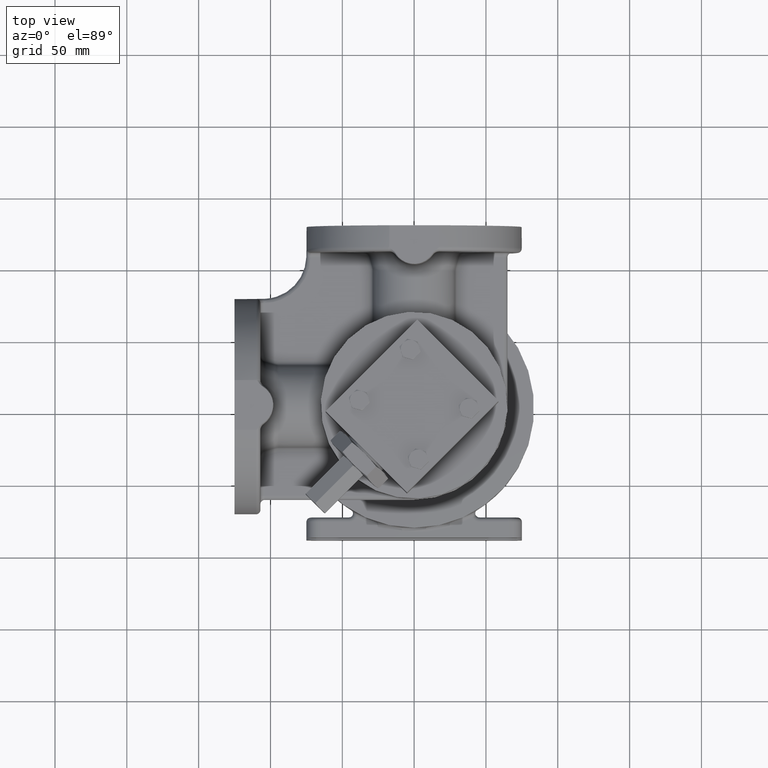
[diagram: clean part render]
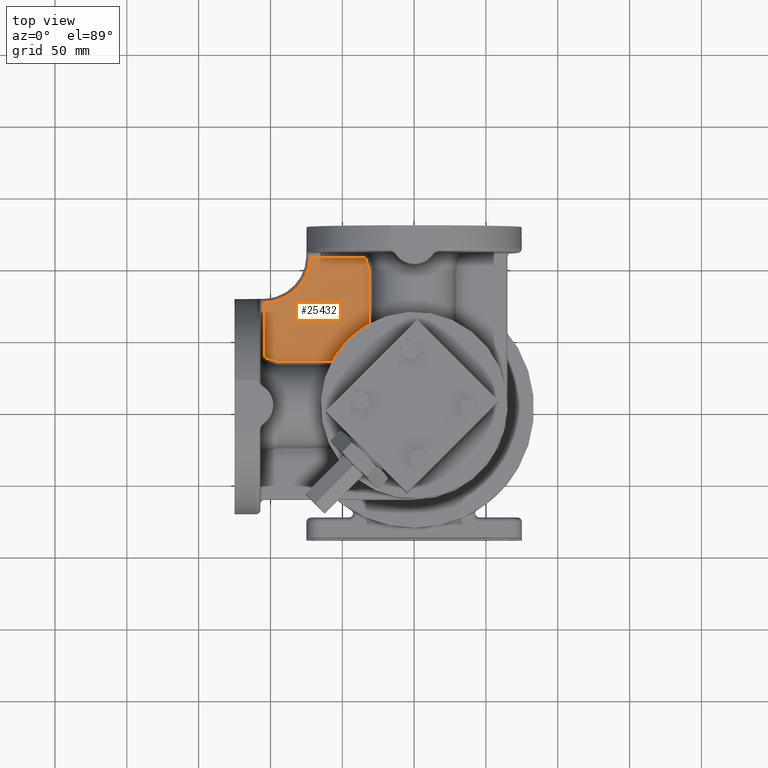
[diagram: same view with one face highlighted and labeled with its STEP entity id]
A machine part, top view. The second image highlights one B-rep face of the part: STEP entity #25432.
In plain terms, the highlighted planar face has unit normal (0, 0, 1).
Its self-contained STEP definition (entity closure, byte-faithful):
#3780=DIRECTION('',(-1.E0,0.E0,0.E0));
#3781=VECTOR('',#3780,3.646591405907E1);
#3782=CARTESIAN_POINT('',(-3.554924084365E1,1.04E2,8.8E1));
#3783=LINE('',#3782,#3781);
#3784=CARTESIAN_POINT('',(-3.358848383382E1,1.025176380902E2,8.8E1));
#3785=CARTESIAN_POINT('',(-3.359880674233E1,1.025555632289E2,8.8E1));
#3786=CARTESIAN_POINT('',(-3.362168765142E1,1.026307127251E2,8.8E1));
#3787=CARTESIAN_POINT('',(-3.366279563375E1,1.027415481895E2,8.8E1));
#3788=CARTESIAN_POINT('',(-3.371048708327E1,1.028498430562E2,8.8E1));
#3789=CARTESIAN_POINT('',(-3.376464429374E1,1.029553051851E2,8.8E1));
#3790=CARTESIAN_POINT('',(-3.382508992555E1,1.030575346291E2,8.8E1));
#3791=CARTESIAN_POINT('',(-3.389163890493E1,1.031561783818E2,8.8E1));
#3792=CARTESIAN_POINT('',(-3.396407886905E1,1.032508791446E2,8.8E1));
#3793=CARTESIAN_POINT('',(-3.404217651746E1,1.033412929686E2,8.8E1));
#3794=CARTESIAN_POINT('',(-3.412567543907E1,1.034270858297E2,8.8E1));
#3795=CARTESIAN_POINT('',(-3.421429716557E1,1.035079370077E2,8.8E1));
#3796=CARTESIAN_POINT('',(-3.430774143446E1,1.035835403806E2,8.8E1));
#3797=CARTESIAN_POINT('',(-3.440568684714E1,1.036536063155E2,8.8E1));
#3798=CARTESIAN_POINT('',(-3.450779177099E1,1.037178634824E2,8.8E1));
#3799=CARTESIAN_POINT('',(-3.461369541848E1,1.037760606378E2,8.8E1));
#3800=CARTESIAN_POINT('',(-3.472301930221E1,1.038279683638E2,8.8E1));
#3801=CARTESIAN_POINT('',(-3.483536843517E1,1.038733806255E2,8.8E1));
#3802=CARTESIAN_POINT('',(-3.495033428057E1,1.039121164193E2,8.8E1));
#3803=CARTESIAN_POINT('',(-3.506749244930E1,1.039440205929E2,8.8E1));
#3804=CARTESIAN_POINT('',(-3.518641998085E1,1.039689663127E2,8.8E1));
#3805=CARTESIAN_POINT('',(-3.530664526254E1,1.039868519392E2,8.8E1));
#3806=CARTESIAN_POINT('',(-3.542780604216E1,1.039976102206E2,8.8E1));
#3807=CARTESIAN_POINT('',(-3.550871312508E1,1.039999999625E2,8.8E1));
#3808=CARTESIAN_POINT('',(-3.554924084365E1,1.04E2,8.8E1));
#3810=CARTESIAN_POINT('',(-3.150184341324E1,9.485937560227E1,8.8E1));
#3811=CARTESIAN_POINT('',(-3.172990390845E1,9.569547843597E1,8.800000000003E1));
#3812=CARTESIAN_POINT('',(-3.218854584860E1,9.737756188960E1,8.799999999998E1));
#3813=CARTESIAN_POINT('',(-3.288407941309E1,9.993029374856E1,8.800000000001E1));
#3814=CARTESIAN_POINT('',(-3.335283690229E1,1.016518960543E2,8.799999999998E1));
#3815=CARTESIAN_POINT('',(-3.358848383382E1,1.025176380902E2,8.8E1));
#3817=CARTESIAN_POINT('',(-3.143246729100E1,9.434173751206E1,8.8E1));
#3818=CARTESIAN_POINT('',(-3.143246731014E1,9.437664107520E1,8.8E1));
#3819=CARTESIAN_POINT('',(-3.143432425424E1,9.444635389609E1,8.8E1));
#3820=CARTESIAN_POINT('',(-3.144268590893E1,9.455079804084E1,8.8E1));
#3821=CARTESIAN_POINT('',(-3.145659800562E1,9.465464361049E1,8.8E1));
#3822=CARTESIAN_POINT('',(-3.147604401720E1,9.475772504169E1,8.8E1));
#3823=CARTESIAN_POINT('',(-3.149263423297E1,9.482561331534E1,8.8E1));
#3824=CARTESIAN_POINT('',(-3.150184341324E1,9.485937560227E1,8.8E1));
#3826=DIRECTION('',(0.E0,1.E0,0.E0));
#3827=VECTOR('',#3826,4.221863149977E1);
#3828=CARTESIAN_POINT('',(-3.143246729100E1,5.212310601229E1,8.8E1));
#3829=LINE('',#3828,#3827);
#3830=CARTESIAN_POINT('',(-3.346640106136E1,5.012310601229E1,8.8E1));
#3831=CARTESIAN_POINT('',(-3.342658440960E1,5.012310604843E1,8.8E1));
#3832=CARTESIAN_POINT('',(-3.334708989383E1,5.012540468339E1,8.8E1));
#3833=CARTESIAN_POINT('',(-3.322803111641E1,5.013575328415E1,8.8E1));
#3834=CARTESIAN_POINT('',(-3.310985543606E1,5.015295946315E1,8.8E1));
#3835=CARTESIAN_POINT('',(-3.299290633435E1,5.017696048746E1,8.8E1));
#3836=CARTESIAN_POINT('',(-3.287763186766E1,5.020766134802E1,8.8E1));
#3837=CARTESIAN_POINT('',(-3.276443425185E1,5.024494319380E1,8.8E1));
#3838=CARTESIAN_POINT('',(-3.265371692695E1,5.028866060858E1,8.8E1));
#3839=CARTESIAN_POINT('',(-3.254586862150E1,5.033864377436E1,8.8E1));
#3840=CARTESIAN_POINT('',(-3.244126525614E1,5.039469939257E1,8.8E1));
#3841=CARTESIAN_POINT('',(-3.234026726228E1,5.045661214518E1,8.8E1));
#3842=CARTESIAN_POINT('',(-3.224321836509E1,5.052414622259E1,8.8E1));
#3843=CARTESIAN_POINT('',(-3.215044423228E1,5.059704699457E1,8.8E1));
#3844=CARTESIAN_POINT('',(-3.206225144235E1,5.067504272578E1,8.8E1));
#3845=CARTESIAN_POINT('',(-3.197892664561E1,5.075784633914E1,8.8E1));
#3846=CARTESIAN_POINT('',(-3.190073595854E1,5.084515718147E1,8.8E1));
#3847=CARTESIAN_POINT('',(-3.182792465842E1,5.093666263593E1,8.8E1));
#3848=CARTESIAN_POINT('',(-3.176071687977E1,5.103203986400E1,8.8E1));
#3849=CARTESIAN_POINT('',(-3.169931552564E1,5.113095751991E1,8.8E1));
#3850=CARTESIAN_POINT('',(-3.164390251863E1,5.123307699806E1,8.8E1));
#3851=CARTESIAN_POINT('',(-3.159463899714E1,5.133805399064E1,8.8E1));
#3852=CARTESIAN_POINT('',(-3.155166585759E1,5.144553890873E1,8.8E1));
#3853=CARTESIAN_POINT('',(-3.151510364463E1,5.155518026664E1,8.8E1));
#3854=CARTESIAN_POINT('',(-3.148505429550E1,5.166661832236E1,8.8E1));
#3855=CARTESIAN_POINT('',(-3.146159864255E1,5.177950663334E1,8.8E1));
#3856=CARTESIAN_POINT('',(-3.144480301241E1,5.189345147786E1,8.8E1));
#3857=CARTESIAN_POINT('',(-3.143470811200E1,5.200817802784E1,8.8E1));
#3858=CARTESIAN_POINT('',(-3.143246732832E1,5.208475719833E1,8.8E1));
#3859=CARTESIAN_POINT('',(-3.143246729100E1,5.212310601229E1,8.8E1));
#3861=DIRECTION('',(1.E0,0.E0,0.E0));
#3862=VECTOR('',#3861,3.656704950931E0);
#3863=CARTESIAN_POINT('',(-3.712310601229E1,5.012310601229E1,8.8E1));
#3864=LINE('',#3863,#3862);
#3865=CARTESIAN_POINT('',(-3.712310601229E1,3.712310601229E1,8.8E1));
#3866=DIRECTION('',(0.E0,0.E0,-1.E0));
#3867=DIRECTION('',(-1.E0,-1.421085471520E-14,0.E0));
#3868=AXIS2_PLACEMENT_3D('',#3865,#3866,#3867);
#3870=DIRECTION('',(0.E0,1.E0,0.E0));
#3871=VECTOR('',#3870,3.656704950931E0);
#3872=CARTESIAN_POINT('',(-5.012310601229E1,3.346640106136E1,8.8E1));
#3873=LINE('',#3872,#3871);
#3874=CARTESIAN_POINT('',(-5.212310601229E1,3.143246729100E1,8.8E1));
#3875=CARTESIAN_POINT('',(-5.208475637058E1,3.143246732749E1,8.8E1));
#3876=CARTESIAN_POINT('',(-5.200817591966E1,3.143470821943E1,8.8E1));
#3877=CARTESIAN_POINT('',(-5.189344930166E1,3.144480326862E1,8.8E1));
#3878=CARTESIAN_POINT('',(-5.177950405952E1,3.146159909755E1,8.8E1));
#3879=CARTESIAN_POINT('',(-5.166661592215E1,3.148505487164E1,8.8E1));
#3880=CARTESIAN_POINT('',(-5.155517786499E1,3.151510436765E1,8.8E1));
#3881=CARTESIAN_POINT('',(-5.144553659021E1,3.155166670656E1,8.8E1));
#3882=CARTESIAN_POINT('',(-5.133805173713E1,3.159463997352E1,8.8E1));
#3883=CARTESIAN_POINT('',(-5.123307482713E1,3.164390361395E1,8.8E1));
#3884=CARTESIAN_POINT('',(-5.113095543605E1,3.169931673501E1,8.8E1));
#3885=CARTESIAN_POINT('',(-5.103203787620E1,3.176071819689E1,8.8E1));
#3886=CARTESIAN_POINT('',(-5.093666074897E1,3.182792607537E1,8.8E1));
#3887=CARTESIAN_POINT('',(-5.084515540071E1,3.190073746580E1,8.8E1));
#3888=CARTESIAN_POINT('',(-5.075784466821E1,3.197892823487E1,8.8E1));
#3889=CARTESIAN_POINT('',(-5.067504116750E1,3.206225310587E1,8.8E1));
#3890=CARTESIAN_POINT('',(-5.059704555203E1,3.215044596193E1,8.8E1));
#3891=CARTESIAN_POINT('',(-5.052414489801E1,3.224322015360E1,8.8E1));
#3892=CARTESIAN_POINT('',(-5.045661094068E1,3.234026910253E1,8.8E1));
#3893=CARTESIAN_POINT('',(-5.039469830977E1,3.244126714157E1,8.8E1));
#3894=CARTESIAN_POINT('',(-5.033864281536E1,3.254587054608E1,8.8E1));
#3895=CARTESIAN_POINT('',(-5.028865977251E1,3.265371888303E1,8.8E1));
#3896=CARTESIAN_POINT('',(-5.024494247893E1,3.276443623363E1,8.8E1));
#3897=CARTESIAN_POINT('',(-5.020766075331E1,3.287763387275E1,8.8E1));
#3898=CARTESIAN_POINT('',(-5.017696001638E1,3.299290832769E1,8.8E1));
#3899=CARTESIAN_POINT('',(-5.015295909540E1,3.310985754190E1,8.8E1));
#3900=CARTESIAN_POINT('',(-5.013575307720E1,3.322803290751E1,8.8E1));
#3901=CARTESIAN_POINT('',(-5.012540460278E1,3.334709152506E1,8.8E1));
#3902=CARTESIAN_POINT('',(-5.012310604915E1,3.342658504627E1,8.8E1));
#3903=CARTESIAN_POINT('',(-5.012310601229E1,3.346640106136E1,8.8E1));
#3905=DIRECTION('',(1.E0,0.E0,0.E0));
#3906=VECTOR('',#3905,4.221863149977E1);
#3907=CARTESIAN_POINT('',(-9.434173751206E1,3.143246729100E1,8.8E1));
#3908=LINE('',#3907,#3906);
#3909=CARTESIAN_POINT('',(-9.485937560227E1,3.150184341324E1,8.8E1));
#3910=CARTESIAN_POINT('',(-9.482560405302E1,3.149263169986E1,8.8E1));
#3911=CARTESIAN_POINT('',(-9.475770145714E1,3.147603872782E1,8.8E1));
#3912=CARTESIAN_POINT('',(-9.465461773934E1,3.145659386348E1,8.8E1));
#3913=CARTESIAN_POINT('',(-9.455077204887E1,3.144268310179E1,8.8E1));
#3914=CARTESIAN_POINT('',(-9.444632974120E1,3.143432314848E1,8.8E1));
#3915=CARTESIAN_POINT('',(-9.437663147044E1,3.143246731658E1,8.8E1));
#3916=CARTESIAN_POINT('',(-9.434173751206E1,3.143246729100E1,8.8E1));
#3918=CARTESIAN_POINT('',(-1.025176380902E2,3.358848383382E1,8.8E1));
#3919=CARTESIAN_POINT('',(-1.016518960693E2,3.335283690636E1,8.799999999998E1));
#3920=CARTESIAN_POINT('',(-9.993029378318E1,3.288407942252E1,8.800000000001E1));
#3921=CARTESIAN_POINT('',(-9.737756189758E1,3.218854585078E1,8.799999999998E1));
#3922=CARTESIAN_POINT('',(-9.569547843925E1,3.172990390934E1,8.800000000003E1));
#3923=CARTESIAN_POINT('',(-9.485937560227E1,3.150184341324E1,8.8E1));
#3925=CARTESIAN_POINT('',(-1.04E2,3.554924084365E1,8.8E1));
#3926=CARTESIAN_POINT('',(-1.039999999632E2,3.550871251378E1,8.8E1));
#3927=CARTESIAN_POINT('',(-1.039976101410E2,3.542780447818E1,8.8E1));
#3928=CARTESIAN_POINT('',(-1.039868517403E2,3.530664357536E1,8.8E1));
#3929=CARTESIAN_POINT('',(-1.039689659575E2,3.518641798823E1,8.8E1));
#3930=CARTESIAN_POINT('',(-1.039440201420E2,3.506749058002E1,8.8E1));
#3931=CARTESIAN_POINT('',(-1.039121158479E2,3.495033239400E1,8.8E1));
#3932=CARTESIAN_POINT('',(-1.038733799402E2,3.483536657833E1,8.8E1));
#3933=CARTESIAN_POINT('',(-1.038279675603E2,3.472301747065E1,8.8E1));
#3934=CARTESIAN_POINT('',(-1.037760597171E2,3.461369362179E1,8.8E1));
#3935=CARTESIAN_POINT('',(-1.037178624461E2,3.450779001306E1,8.8E1));
#3936=CARTESIAN_POINT('',(-1.036536051654E2,3.440568513484E1,8.8E1));
#3937=CARTESIAN_POINT('',(-1.035835391180E2,3.430773977399E1,8.8E1));
#3938=CARTESIAN_POINT('',(-1.035079356346E2,3.421429556445E1,8.8E1));
#3939=CARTESIAN_POINT('',(-1.034270843473E2,3.412567390451E1,8.8E1));
#3940=CARTESIAN_POINT('',(-1.033412913809E2,3.404217505947E1,8.8E1));
#3941=CARTESIAN_POINT('',(-1.032508774503E2,3.396407749321E1,8.8E1));
#3942=CARTESIAN_POINT('',(-1.031561765977E2,3.389163762365E1,8.8E1));
#3943=CARTESIAN_POINT('',(-1.030575327325E2,3.382508872872E1,8.8E1));
#3944=CARTESIAN_POINT('',(-1.029553032572E2,3.376464322734E1,8.8E1));
#3945=CARTESIAN_POINT('',(-1.028498409266E2,3.371048607041E1,8.8E1));
#3946=CARTESIAN_POINT('',(-1.027415463668E2,3.366279489521E1,8.8E1));
#3947=CARTESIAN_POINT('',(-1.026307109101E2,3.362168705414E1,8.8E1));
#3948=CARTESIAN_POINT('',(-1.025555625055E2,3.359880654624E1,8.8E1));
#3949=CARTESIAN_POINT('',(-1.025176380902E2,3.358848383382E1,8.8E1));
#3951=DIRECTION('',(0.E0,-1.E0,0.E0));
#3952=VECTOR('',#3951,3.646591422206E1);
#3953=CARTESIAN_POINT('',(-1.04E2,7.201515506570E1,8.8E1));
#3954=LINE('',#3953,#3952);
#3955=CARTESIAN_POINT('',(-7.201515490272E1,1.04E2,8.8E1));
#3956=CARTESIAN_POINT('',(-7.202502451420E1,1.036744548107E2,8.799999999788E1));
#3957=CARTESIAN_POINT('',(-7.205438865452E1,1.030239217055E2,8.800000000099E1));
#3958=CARTESIAN_POINT('',(-7.212734169887E1,1.020492785594E2,8.799999999974E1));
#3959=CARTESIAN_POINT('',(-7.222911314850E1,1.010773380892E2,8.800000000007E1));
#3960=CARTESIAN_POINT('',(-7.235961820592E1,1.001088002454E2,8.799999999998E1));
#3961=CARTESIAN_POINT('',(-7.251874430879E1,9.914454346130E1,8.800000000001E1));
#3962=CARTESIAN_POINT('',(-7.270634868295E1,9.818542505126E1,8.8E1));
#3963=CARTESIAN_POINT('',(-7.292226869939E1,9.723227812274E1,8.8E1));
#3964=CARTESIAN_POINT('',(-7.316631404508E1,9.628594303948E1,8.8E1));
#3965=CARTESIAN_POINT('',(-7.343827112914E1,9.534724789759E1,8.8E1));
#3966=CARTESIAN_POINT('',(-7.373790136655E1,9.441701636374E1,8.8E1));
#3967=CARTESIAN_POINT('',(-7.406494209909E1,9.349606390569E1,8.8E1));
#3968=CARTESIAN_POINT('',(-7.441910655547E1,9.258519806001E1,8.8E1));
#3969=CARTESIAN_POINT('',(-7.480008419414E1,9.168521745388E1,8.8E1));
#3970=CARTESIAN_POINT('',(-7.520754096705E1,9.079691118368E1,8.8E1));
#3971=CARTESIAN_POINT('',(-7.564111961245E1,8.992105810843E1,8.8E1));
#3972=CARTESIAN_POINT('',(-7.610043996854E1,8.905842616984E1,8.8E1));
#3973=CARTESIAN_POINT('',(-7.658509930670E1,8.820977171836E1,8.8E1));
#3974=CARTESIAN_POINT('',(-7.709467268422E1,8.737583885088E1,8.8E1));
#3975=CARTESIAN_POINT('',(-7.762871331683E1,8.655735875911E1,8.8E1));
#3976=CARTESIAN_POINT('',(-7.818675296868E1,8.575504908815E1,8.8E1));
#3977=CARTESIAN_POINT('',(-7.876830236737E1,8.496961331116E1,8.8E1));
#3978=CARTESIAN_POINT('',(-7.937285160991E1,8.420174009546E1,8.8E1));
#3979=CARTESIAN_POINT('',(-7.999987061574E1,8.345210269890E1,8.8E1));
#3980=CARTESIAN_POINT('',(-8.064880961007E1,8.272135839361E1,8.8E1));
#3981=CARTESIAN_POINT('',(-8.131909960122E1,8.201014788713E1,8.8E1));
#3982=CARTESIAN_POINT('',(-8.201015288043E1,8.131909476186E1,8.8E1));
#3983=CARTESIAN_POINT('',(-8.272136353646E1,8.064880492857E1,8.8E1));
#3984=CARTESIAN_POINT('',(-8.345210798649E1,7.999986609557E1,8.8E1));
#3985=CARTESIAN_POINT('',(-8.420174552264E1,7.937284725391E1,8.8E1));
#3986=CARTESIAN_POINT('',(-8.496961887261E1,7.876829817803E1,8.8E1));
#3987=CARTESIAN_POINT('',(-8.575505477776E1,7.818674894711E1,8.8E1));
#3988=CARTESIAN_POINT('',(-8.655736457372E1,7.762870946814E1,8.8E1));
#3989=CARTESIAN_POINT('',(-8.737584478675E1,7.709466901318E1,8.8E1));
#3990=CARTESIAN_POINT('',(-8.820977777143E1,7.658509581753E1,8.8E1));
#3991=CARTESIAN_POINT('',(-8.905843233566E1,7.610043666496E1,8.8E1));
#3992=CARTESIAN_POINT('',(-8.992106438187E1,7.564111649785E1,8.8E1));
#3993=CARTESIAN_POINT('',(-9.079691755896E1,7.520753804439E1,8.8E1));
#3994=CARTESIAN_POINT('',(-9.168522392512E1,7.480008146567E1,8.8E1));
#3995=CARTESIAN_POINT('',(-9.258520462243E1,7.441910402218E1,8.8E1));
#3996=CARTESIAN_POINT('',(-9.349607055520E1,7.406493976153E1,8.8E1));
#3997=CARTESIAN_POINT('',(-9.441702309024E1,7.373789922554E1,8.8E1));
#3998=CARTESIAN_POINT('',(-9.534725469879E1,7.343826918681E1,8.8E1));
#3999=CARTESIAN_POINT('',(-9.628594989468E1,7.316631230981E1,8.8E1));
#4000=CARTESIAN_POINT('',(-9.723228505540E1,7.292226716561E1,8.8E1));
#4001=CARTESIAN_POINT('',(-9.818543206624E1,7.270634735418E1,8.8E1));
#4002=CARTESIAN_POINT('',(-9.914455037295E1,7.251874321709E1,8.800000000001E1));
#4003=CARTESIAN_POINT('',(-1.001088075728E2,7.235961726793E1,8.799999999998E1));
#4004=CARTESIAN_POINT('',(-1.010773445091E2,7.222911255497E1,8.800000000007E1));
#4005=CARTESIAN_POINT('',(-1.020492848571E2,7.212734129855E1,8.799999999973E1));
#4006=CARTESIAN_POINT('',(-1.030239264714E2,7.205438856369E1,8.800000000102E1));
#4007=CARTESIAN_POINT('',(-1.036744566628E2,7.202502462214E1,8.799999999781E1));
#4008=CARTESIAN_POINT('',(-1.04E2,7.201515506570E1,8.8E1));
#17389=VERTEX_POINT('',#3784);
#17390=VERTEX_POINT('',#3808);
#17392=VERTEX_POINT('',#3810);
#17394=VERTEX_POINT('',#3817);
#17397=CARTESIAN_POINT('',(-3.143246729100E1,5.212310601229E1,8.8E1));
#17398=VERTEX_POINT('',#17397);
#17400=VERTEX_POINT('',#3830);
#17403=CARTESIAN_POINT('',(-3.712310601229E1,5.012310601229E1,8.8E1));
#17404=VERTEX_POINT('',#17403);
#17407=CARTESIAN_POINT('',(-5.012310601229E1,3.712310601229E1,8.8E1));
#17408=VERTEX_POINT('',#17407);
#17411=CARTESIAN_POINT('',(-5.012310601229E1,3.346640106136E1,8.8E1));
#17412=VERTEX_POINT('',#17411);
#17414=VERTEX_POINT('',#3874);
#17417=CARTESIAN_POINT('',(-9.434173751206E1,3.143246729100E1,8.8E1));
#17418=VERTEX_POINT('',#17417);
#17420=VERTEX_POINT('',#3909);
#17422=VERTEX_POINT('',#3918);
#17424=VERTEX_POINT('',#3925);
#17479=CARTESIAN_POINT('',(-7.201515490272E1,1.04E2,8.8E1));
#17480=VERTEX_POINT('',#17479);
#17485=CARTESIAN_POINT('',(-1.04E2,7.201515506570E1,8.8E1));
#17486=VERTEX_POINT('',#17485);
#25395=CARTESIAN_POINT('',(-2.884441020371E1,1.07E2,8.8E1));
#25396=DIRECTION('',(0.E0,0.E0,1.E0));
#25397=DIRECTION('',(-1.E0,0.E0,0.E0));
#25398=AXIS2_PLACEMENT_3D('',#25395,#25396,#25397);
#25399=PLANE('',#25398);
#25401=ORIENTED_EDGE('',*,*,#25400,.F.);
#25403=ORIENTED_EDGE('',*,*,#25402,.F.);
#25405=ORIENTED_EDGE('',*,*,#25404,.F.);
#25407=ORIENTED_EDGE('',*,*,#25406,.F.);
#25409=ORIENTED_EDGE('',*,*,#25408,.F.);
#25411=ORIENTED_EDGE('',*,*,#25410,.F.);
#25413=ORIENTED_EDGE('',*,*,#25412,.F.);
#25415=ORIENTED_EDGE('',*,*,#25414,.F.);
#25417=ORIENTED_EDGE('',*,*,#25416,.F.);
#25419=ORIENTED_EDGE('',*,*,#25418,.F.);
#25421=ORIENTED_EDGE('',*,*,#25420,.F.);
#25423=ORIENTED_EDGE('',*,*,#25422,.F.);
#25425=ORIENTED_EDGE('',*,*,#25424,.F.);
#25426=ORIENTED_EDGE('',*,*,#25388,.F.);
#25427=ORIENTED_EDGE('',*,*,#21898,.F.);
#25429=ORIENTED_EDGE('',*,*,#25428,.F.);
#25430=EDGE_LOOP('',(#25401,#25403,#25405,#25407,#25409,#25411,#25413,#25415,
#25417,#25419,#25421,#25423,#25425,#25426,#25427,#25429));
#25431=FACE_OUTER_BOUND('',#25430,.F.);
#25432=ADVANCED_FACE('',(#25431),#25399,.T.);
#3809=B_SPLINE_CURVE_WITH_KNOTS('',3,(#3784,#3785,#3786,#3787,#3788,#3789,#3790,
#3791,#3792,#3793,#3794,#3795,#3796,#3797,#3798,#3799,#3800,#3801,#3802,#3803,
#3804,#3805,#3806,#3807,#3808),.UNSPECIFIED.,.F.,.F.,(4,1,1,1,1,1,1,1,1,1,1,1,1,
1,1,1,1,1,1,1,1,1,4),(0.E0,4.545454545455E-2,9.090909090909E-2,
1.363636363636E-1,1.818181818182E-1,2.272727272727E-1,2.727272727273E-1,
3.181818181818E-1,3.636363636364E-1,4.090909090909E-1,4.545454545455E-1,5.E-1,
5.454545454545E-1,5.909090909091E-1,6.363636363636E-1,6.818181818182E-1,
7.272727272727E-1,7.727272727273E-1,8.181818181818E-1,8.636363636364E-1,
9.090909090909E-1,9.545454545455E-1,1.E0),.UNSPECIFIED.);
#3816=B_SPLINE_CURVE_WITH_KNOTS('',3,(#3810,#3811,#3812,#3813,#3814,#3815),
.UNSPECIFIED.,.F.,.F.,(4,1,1,4),(0.E0,3.333333333333E-1,6.666666666667E-1,1.E0),
.UNSPECIFIED.);
#3825=B_SPLINE_CURVE_WITH_KNOTS('',3,(#3817,#3818,#3819,#3820,#3821,#3822,#3823,
#3824),.UNSPECIFIED.,.F.,.F.,(4,1,1,1,1,4),(0.E0,2.E-1,4.E-1,6.E-1,8.E-1,1.E0),
.UNSPECIFIED.);
#3860=B_SPLINE_CURVE_WITH_KNOTS('',3,(#3830,#3831,#3832,#3833,#3834,#3835,#3836,
#3837,#3838,#3839,#3840,#3841,#3842,#3843,#3844,#3845,#3846,#3847,#3848,#3849,
#3850,#3851,#3852,#3853,#3854,#3855,#3856,#3857,#3858,#3859),.UNSPECIFIED.,.F.,
.F.,(4,1,1,1,1,1,1,1,1,1,1,1,1,1,1,1,1,1,1,1,1,1,1,1,1,1,1,4),(0.E0,
3.703703703704E-2,7.407407407407E-2,1.111111111111E-1,1.481481481481E-1,
1.851851851852E-1,2.222222222222E-1,2.592592592593E-1,2.962962962963E-1,
3.333333333333E-1,3.703703703704E-1,4.074074074074E-1,4.444444444444E-1,
4.814814814815E-1,5.185185185185E-1,5.555555555556E-1,5.925925925926E-1,
6.296296296296E-1,6.666666666667E-1,7.037037037037E-1,7.407407407407E-1,
7.777777777778E-1,8.148148148148E-1,8.518518518519E-1,8.888888888889E-1,
9.259259259259E-1,9.629629629630E-1,1.E0),.UNSPECIFIED.);
#3869=CIRCLE('',#3868,1.3E1);
#3904=B_SPLINE_CURVE_WITH_KNOTS('',3,(#3874,#3875,#3876,#3877,#3878,#3879,#3880,
#3881,#3882,#3883,#3884,#3885,#3886,#3887,#3888,#3889,#3890,#3891,#3892,#3893,
#3894,#3895,#3896,#3897,#3898,#3899,#3900,#3901,#3902,#3903),.UNSPECIFIED.,.F.,
.F.,(4,1,1,1,1,1,1,1,1,1,1,1,1,1,1,1,1,1,1,1,1,1,1,1,1,1,1,4),(0.E0,
3.703703703704E-2,7.407407407407E-2,1.111111111111E-1,1.481481481481E-1,
1.851851851852E-1,2.222222222222E-1,2.592592592593E-1,2.962962962963E-1,
3.333333333333E-1,3.703703703704E-1,4.074074074074E-1,4.444444444444E-1,
4.814814814815E-1,5.185185185185E-1,5.555555555556E-1,5.925925925926E-1,
6.296296296296E-1,6.666666666667E-1,7.037037037037E-1,7.407407407407E-1,
7.777777777778E-1,8.148148148148E-1,8.518518518519E-1,8.888888888889E-1,
9.259259259259E-1,9.629629629630E-1,1.E0),.UNSPECIFIED.);
#3917=B_SPLINE_CURVE_WITH_KNOTS('',3,(#3909,#3910,#3911,#3912,#3913,#3914,#3915,
#3916),.UNSPECIFIED.,.F.,.F.,(4,1,1,1,1,4),(0.E0,2.E-1,4.E-1,6.E-1,8.E-1,1.E0),
.UNSPECIFIED.);
#3924=B_SPLINE_CURVE_WITH_KNOTS('',3,(#3918,#3919,#3920,#3921,#3922,#3923),
.UNSPECIFIED.,.F.,.F.,(4,1,1,4),(0.E0,3.333333333333E-1,6.666666666667E-1,1.E0),
.UNSPECIFIED.);
#3950=B_SPLINE_CURVE_WITH_KNOTS('',3,(#3925,#3926,#3927,#3928,#3929,#3930,#3931,
#3932,#3933,#3934,#3935,#3936,#3937,#3938,#3939,#3940,#3941,#3942,#3943,#3944,
#3945,#3946,#3947,#3948,#3949),.UNSPECIFIED.,.F.,.F.,(4,1,1,1,1,1,1,1,1,1,1,1,1,
1,1,1,1,1,1,1,1,1,4),(0.E0,4.545454545455E-2,9.090909090909E-2,
1.363636363636E-1,1.818181818182E-1,2.272727272727E-1,2.727272727273E-1,
3.181818181818E-1,3.636363636364E-1,4.090909090909E-1,4.545454545455E-1,5.E-1,
5.454545454545E-1,5.909090909091E-1,6.363636363636E-1,6.818181818182E-1,
7.272727272727E-1,7.727272727273E-1,8.181818181818E-1,8.636363636364E-1,
9.090909090909E-1,9.545454545455E-1,1.E0),.UNSPECIFIED.);
#4009=B_SPLINE_CURVE_WITH_KNOTS('',3,(#3955,#3956,#3957,#3958,#3959,#3960,#3961,
#3962,#3963,#3964,#3965,#3966,#3967,#3968,#3969,#3970,#3971,#3972,#3973,#3974,
#3975,#3976,#3977,#3978,#3979,#3980,#3981,#3982,#3983,#3984,#3985,#3986,#3987,
#3988,#3989,#3990,#3991,#3992,#3993,#3994,#3995,#3996,#3997,#3998,#3999,#4000,
#4001,#4002,#4003,#4004,#4005,#4006,#4007,#4008),.UNSPECIFIED.,.F.,.F.,(4,1,1,1,
1,1,1,1,1,1,1,1,1,1,1,1,1,1,1,1,1,1,1,1,1,1,1,1,1,1,1,1,1,1,1,1,1,1,1,1,1,1,1,1,
1,1,1,1,1,1,1,4),(0.E0,1.960784313725E-2,3.921568627451E-2,5.882352941176E-2,
7.843137254902E-2,9.803921568627E-2,1.176470588235E-1,1.372549019608E-1,
1.568627450980E-1,1.764705882353E-1,1.960784313725E-1,2.156862745098E-1,
2.352941176471E-1,2.549019607843E-1,2.745098039216E-1,2.941176470588E-1,
3.137254901961E-1,3.333333333333E-1,3.529411764706E-1,3.725490196078E-1,
3.921568627451E-1,4.117647058824E-1,4.313725490196E-1,4.509803921569E-1,
4.705882352941E-1,4.901960784314E-1,5.098039215686E-1,5.294117647059E-1,
5.490196078431E-1,5.686274509804E-1,5.882352941176E-1,6.078431372549E-1,
6.274509803922E-1,6.470588235294E-1,6.666666666667E-1,6.862745098039E-1,
7.058823529412E-1,7.254901960784E-1,7.450980392157E-1,7.647058823529E-1,
7.843137254902E-1,8.039215686275E-1,8.235294117647E-1,8.431372549020E-1,
8.627450980392E-1,8.823529411765E-1,9.019607843137E-1,9.215686274510E-1,
9.411764705882E-1,9.607843137255E-1,9.803921568627E-1,1.E0),.UNSPECIFIED.);
#21898=EDGE_CURVE('',#17486,#17424,#3954,.T.);
#25388=EDGE_CURVE('',#17424,#17422,#3950,.T.);
#25400=EDGE_CURVE('',#17390,#17480,#3783,.T.);
#25402=EDGE_CURVE('',#17389,#17390,#3809,.T.);
#25404=EDGE_CURVE('',#17392,#17389,#3816,.T.);
#25406=EDGE_CURVE('',#17394,#17392,#3825,.T.);
#25408=EDGE_CURVE('',#17398,#17394,#3829,.T.);
#25410=EDGE_CURVE('',#17400,#17398,#3860,.T.);
#25412=EDGE_CURVE('',#17404,#17400,#3864,.T.);
#25414=EDGE_CURVE('',#17408,#17404,#3869,.T.);
#25416=EDGE_CURVE('',#17412,#17408,#3873,.T.);
#25418=EDGE_CURVE('',#17414,#17412,#3904,.T.);
#25420=EDGE_CURVE('',#17418,#17414,#3908,.T.);
#25422=EDGE_CURVE('',#17420,#17418,#3917,.T.);
#25424=EDGE_CURVE('',#17422,#17420,#3924,.T.);
#25428=EDGE_CURVE('',#17480,#17486,#4009,.T.);